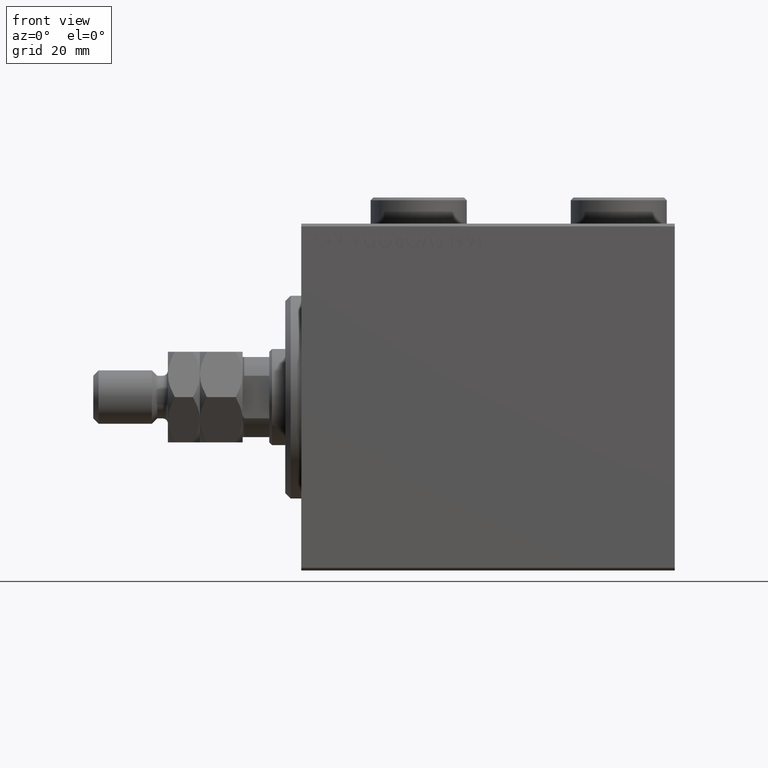
[diagram: clean part render]
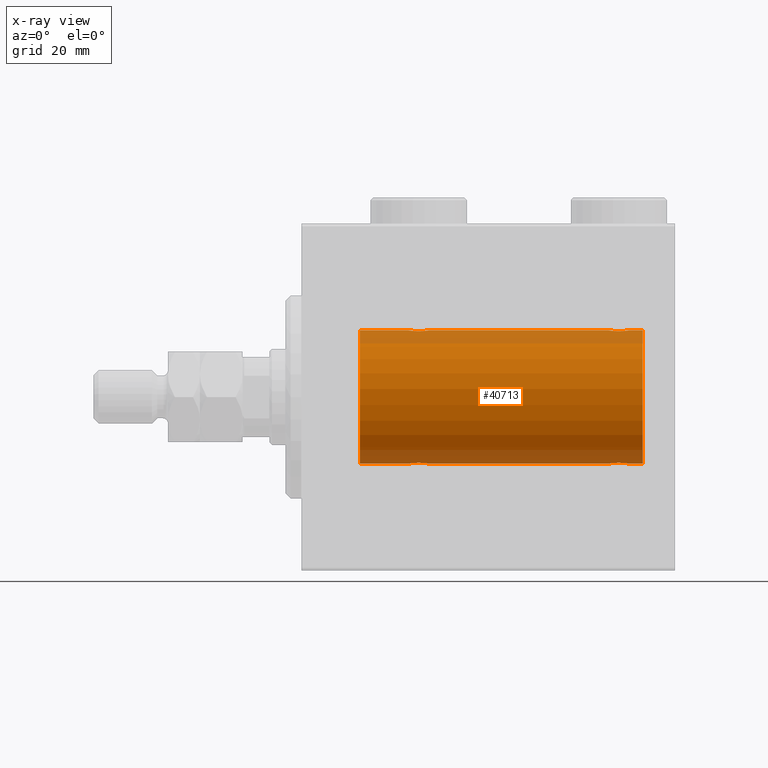
[diagram: x-ray — body ghosted, one internal face saturated and labeled with its STEP entity id]
A machine part, front view, then the same camera in x-ray: the body is ghosted and one INTERNAL B-rep face — a face not visible from any outside direction — is saturated and labeled: STEP entity #40713.
In plain terms, the highlighted cylindrical surface (partial cylindrical patch) has radius 12.5 mm, axis along (-1, -0, -0).
Its self-contained STEP definition (entity closure, byte-faithful):
#77 = CARTESIAN_POINT ( 'NONE',  ( 64.00000000000000000, 0.000000000000000000, 12.50000000000000000 ) ) ;
#99 = EDGE_CURVE ( 'NONE', #18798, #30659, #8438, .T. ) ;
#126 = CARTESIAN_POINT ( 'NONE',  ( 22.51693726697628151, -1.936441098420708773, 12.34912369794528608 ) ) ;
#435 = EDGE_CURVE ( 'NONE', #7023, #18798, #46847, .T. ) ;
#594 = CARTESIAN_POINT ( 'NONE',  ( 20.26436921980423023, -1.002396200863561404, 12.46022444231050841 ) ) ;
#702 = CARTESIAN_POINT ( 'NONE',  ( 64.00000000000000000, 1.530808498934191521E-15, -12.50000000000000000 ) ) ;
#1249 = EDGE_CURVE ( 'NONE', #4387, #30659, #10183, .T. ) ;
#1471 = ORIENTED_EDGE ( 'NONE', *, *, #8258, .T. ) ;
#1595 = DIRECTION ( 'NONE',  ( 0.000000000000000000, 0.000000000000000000, 1.000000000000000000 ) ) ;
#1694 = CARTESIAN_POINT ( 'NONE',  ( 59.36659749548705634, -1.999916920503820750, 12.33897614545467469 ) ) ;
#1918 = DIRECTION ( 'NONE',  ( -1.000000000000000000, -0.000000000000000000, -0.000000000000000000 ) ) ;
#2161 = CARTESIAN_POINT ( 'NONE',  ( 58.27972850102579372, -1.589951752150273068, 12.39868561261688917 ) ) ;
#2279 = CARTESIAN_POINT ( 'NONE',  ( 60.82299943107732787, -1.505544071529934858, -12.40934942683853492 ) ) ;
#2503 = CARTESIAN_POINT ( 'NONE',  ( 58.17883287148557514, -1.507135374967702557, -12.40915432986587241 ) ) ;
#3165 = VERTEX_POINT ( 'NONE', #8425 ) ;
#3197 = CARTESIAN_POINT ( 'NONE',  ( 61.08981090228289901, -1.220538259806349446, -12.44075068685996932 ) ) ;
#3242 = CARTESIAN_POINT ( 'NONE',  ( 22.88874725797039389, -1.796480516834687347, -12.37033750336835247 ) ) ;
#3462 = CARTESIAN_POINT ( 'NONE',  ( 20.77972850102578661, -1.589951752150277287, 12.39868561261688917 ) ) ;
#3881 = EDGE_CURVE ( 'NONE', #3165, #6021, #16280, .T. ) ;
#3944 = CARTESIAN_POINT ( 'NONE',  ( 23.58981090228289546, -1.220538259806347225, -12.44075068685997287 ) ) ;
#4134 = DIRECTION ( 'NONE',  ( -1.000000000000000000, -0.000000000000000000, -0.000000000000000000 ) ) ;
#4275 = DIRECTION ( 'NONE',  ( -1.000000000000000000, -0.000000000000000000, -0.000000000000000000 ) ) ;
#4387 = VERTEX_POINT ( 'NONE', #35763 ) ;
#4408 = CARTESIAN_POINT ( 'NONE',  ( 23.00099792098508189, -1.736403706023272431, 12.37902502246767966 ) ) ;
#4660 = CARTESIAN_POINT ( 'NONE',  ( 20.67883287148555382, -1.507135374967699670, -12.40915432986587064 ) ) ;
#5086 = CARTESIAN_POINT ( 'NONE',  ( 64.00000000000000000, 0.000000000000000000, 12.50000000000000000 ) ) ;
#5861 = VECTOR ( 'NONE', #21589, 1000.000000000000000 ) ;
#5868 = CARTESIAN_POINT ( 'NONE',  ( 59.23906502714393696, -1.987194304939080336, -12.34105826212745960 ) ) ;
#5988 = CARTESIAN_POINT ( 'NONE',  ( 60.01693726697627085, -1.936441098420706775, 12.34912369794528608 ) ) ;
#6021 = VERTEX_POINT ( 'NONE', #32816 ) ;
#6222 = CARTESIAN_POINT ( 'NONE',  ( 57.50000000000000000, -7.266434456262306043E-23, 12.50000000000000000 ) ) ;
#6328 = CARTESIAN_POINT ( 'NONE',  ( 61.50000000000000711, 1.530808426270318106E-15, -12.50000000000000000 ) ) ;
#6561 = CARTESIAN_POINT ( 'NONE',  ( 60.38874725797041521, -1.796480516834690455, -12.37033750336835780 ) ) ;
#7023 = VERTEX_POINT ( 'NONE', #30250 ) ;
#7065 = CARTESIAN_POINT ( 'NONE',  ( 19.99999999999999645, -7.265724481447607133E-23, 12.50000000000000000 ) ) ;
#7073 = CARTESIAN_POINT ( 'NONE',  ( 23.94744340572329833, -0.5247436444070328054, -12.49130933415156619 ) ) ;
#7277 = EDGE_CURVE ( 'NONE', #4387, #37703, #40839, .T. ) ;
#8005 = CARTESIAN_POINT ( 'NONE',  ( 21.86659749548704212, -1.999916920503820306, 12.33897614545467647 ) ) ;
#8011 = CARTESIAN_POINT ( 'NONE',  ( 20.25337863379106551, -1.008535157355840761, -12.46157701909767646 ) ) ;
#8258 = EDGE_CURVE ( 'NONE', #7023, #26371, #23891, .T. ) ;
#8425 = CARTESIAN_POINT ( 'NONE',  ( 24.00000000000000000, 1.530808426277417854E-15, -12.50000000000000000 ) ) ;
#8438 = LINE ( 'NONE', #5086, #14132 ) ;
#8832 = DIRECTION ( 'NONE',  ( -1.000000000000000000, -0.000000000000000000, -0.000000000000000000 ) ) ;
#8856 = DIRECTION ( 'NONE',  ( 0.000000000000000000, 0.000000000000000000, 1.000000000000000000 ) ) ;
#8916 = EDGE_CURVE ( 'NONE', #26371, #18237, #27354, .T. ) ;
#9113 = CARTESIAN_POINT ( 'NONE',  ( 58.17700056892267924, -1.505544071529938632, 12.40934942683853670 ) ) ;
#9570 = CARTESIAN_POINT ( 'NONE',  ( 57.55255659427669457, -0.5247436444070353589, 12.49130933415156441 ) ) ;
#9679 = EDGE_CURVE ( 'NONE', #42228, #21039, #33014, .T. ) ;
#9806 = CARTESIAN_POINT ( 'NONE',  ( 59.23608626897564733, -1.986793270638198106, 12.34112317291865146 ) ) ;
#10146 = CARTESIAN_POINT ( 'NONE',  ( 61.44744340572331254, -0.5247436444070329165, -12.49130933415156797 ) ) ;
#10183 = B_SPLINE_CURVE_WITH_KNOTS ( 'NONE', 3,
 ( #6222, #38414, #9570, #34622, #13388, #12934, #37951, #9113, #2161, #41511, #45093, #19860, #34386, #9806, #1694, #41987, #16281, #5988, #27475, #34852, #30807, #16754, #31286, #45804, #27928, #13162, #27699, #35307 ),
 .UNSPECIFIED., .F., .F.,
 ( 4, 2, 2, 2, 2, 2, 2, 2, 2, 2, 2, 2, 2, 4 ),
 ( 0.006262980370572174098, 0.007045658964677370753, 0.007436998261729972984, 0.007828337558782575215, 0.008219676855835175711, 0.008611016152887777941, 0.009002355449940380172, 0.009393694746992982403, 0.009785034044045584634, 0.01017637334109818686, 0.01056771263815078910, 0.01095905193520338959, 0.01174173052930859232, 0.01252440912341379678 ),
 .UNSPECIFIED. ) ;
#10345 = EDGE_LOOP ( 'NONE', ( #34590, #1471, #30394, #24728, #19996, #23966, #33427, #46573, #36401, #18529, #20792, #38269 ) ) ;
#10379 = CARTESIAN_POINT ( 'NONE',  ( 58.85574721202270609, -1.897913903092051324, -12.35518060345725289 ) ) ;
#10585 = EDGE_CURVE ( 'NONE', #42228, #37703, #16460, .T. ) ;
#11122 = CARTESIAN_POINT ( 'NONE',  ( 20.99654425923307954, -1.734959850168413587, 12.37922718965051061 ) ) ;
#11129 = CARTESIAN_POINT ( 'NONE',  ( 23.73563078019576977, -1.002396200863559184, -12.46022444231050663 ) ) ;
#11829 = CARTESIAN_POINT ( 'NONE',  ( 21.86910032676576421, -2.000082296475566679, -12.33894933996983490 ) ) ;
#12071 = CARTESIAN_POINT ( 'NONE',  ( 22.26391373102435622, -1.986793270638196551, -12.34112317291864791 ) ) ;
#12444 = CARTESIAN_POINT ( 'NONE',  ( 64.00000000000000000, 0.000000000000000000, 0.000000000000000000 ) ) ;
#12529 = CARTESIAN_POINT ( 'NONE',  ( 64.00000000000000000, 0.000000000000000000, 12.50000000000000000 ) ) ;
#12934 = CARTESIAN_POINT ( 'NONE',  ( 57.91018909771712231, -1.220538259806350112, 12.44075068685996932 ) ) ;
#12983 = DIRECTION ( 'NONE',  ( -1.000000000000000000, -0.000000000000000000, -0.000000000000000000 ) ) ;
#13162 = CARTESIAN_POINT ( 'NONE',  ( 61.44665679898378130, -0.5275951738695680016, 12.49118442338578205 ) ) ;
#13272 = CARTESIAN_POINT ( 'NONE',  ( 57.55334320101621159, -0.5275951738695725535, -12.49118442338578561 ) ) ;
#13388 = CARTESIAN_POINT ( 'NONE',  ( 57.76436921980423733, -1.002396200863562736, 12.46022444231050663 ) ) ;
#14132 = VECTOR ( 'NONE', #12983, 1000.000000000000000 ) ;
#14243 = CARTESIAN_POINT ( 'NONE',  ( 22.64643896963591985, -1.897190184049187378, -12.35529285772521924 ) ) ;
#14331 = FACE_OUTER_BOUND ( 'NONE', #10345, .T. ) ;
#14475 = CARTESIAN_POINT ( 'NONE',  ( 23.59744774691023039, -1.231226695485369893, 12.44059298055988272 ) ) ;
#14704 = CARTESIAN_POINT ( 'NONE',  ( 24.00000000000000000, -4.527848004210791175E-16, 12.50000000000000000 ) ) ;
#14712 = CARTESIAN_POINT ( 'NONE',  ( 24.00000000000000000, 1.530808426277417854E-15, -12.50000000000000000 ) ) ;
#14929 = CARTESIAN_POINT ( 'NONE',  ( 20.20214393531741237, -0.8858253204748024467, 12.46915613403961309 ) ) ;
#15413 = CARTESIAN_POINT ( 'NONE',  ( 21.48306273302371494, -1.936441098420706997, -12.34912369794528431 ) ) ;
#16280 = B_SPLINE_CURVE_WITH_KNOTS ( 'NONE', 3,
 ( #14712, #29252, #7073, #46875, #11129, #3944, #39256, #33053, #28551, #35935, #3242, #14243, #43307, #12071, #40897, #11829, #40660, #15413, #34248, #33768, #26865, #34000, #4660, #29953, #8011, #22338, #44956, #44703 ),
 .UNSPECIFIED., .F., .F.,
 ( 4, 2, 2, 2, 2, 2, 2, 2, 2, 2, 2, 2, 2, 4 ),
 ( 0.006262980370572176700, 0.007045658964677373355, 0.007436998261729973851, 0.007828337558782575215, 0.008219676855835175711, 0.008611016152887776207, 0.009002355449940376703, 0.009393694746992977199, 0.009785034044045577695, 0.01017637334109817646, 0.01056771263815077869, 0.01095905193520337745, 0.01174173052930858711, 0.01252440912341379504 ),
 .UNSPECIFIED. ) ;
#16281 = CARTESIAN_POINT ( 'NONE',  ( 59.76093497285608436, -1.987194304939078116, 12.34105826212746138 ) ) ;
#16412 = CARTESIAN_POINT ( 'NONE',  ( 10.99999999999999645, 0.000000000000000000, 0.000000000000000000 ) ) ;
#16460 = B_SPLINE_CURVE_WITH_KNOTS ( 'NONE', 3,
 ( #7065, #33279, #25433, #14929, #594, #36846, #39947, #40653, #3462, #11122, #22097, #25667, #32580, #18054, #8005, #22562, #40414, #126, #37083, #33046, #4408, #36616, #29479, #14475, #43991, #18994, #33526, #14704 ),
 .UNSPECIFIED., .F., .F.,
 ( 4, 2, 2, 2, 2, 2, 2, 2, 2, 2, 2, 2, 2, 4 ),
 ( 0.006262980370572172363, 0.007045658964677369886, 0.007436998261729971249, 0.007828337558782571745, 0.008219676855835172241, 0.008611016152887774472, 0.009002355449940373233, 0.009393694746992975464, 0.009785034044045575960, 0.01017637334109817646, 0.01056771263815077869, 0.01095905193520337918, 0.01174173052930858538, 0.01252440912341379504 ),
 .UNSPECIFIED. ) ;
#16536 = EDGE_CURVE ( 'NONE', #18237, #3165, #41716, .T. ) ;
#16596 = EDGE_CURVE ( 'NONE', #6021, #18158, #30537, .T. ) ;
#16754 = CARTESIAN_POINT ( 'NONE',  ( 60.71854119541938388, -1.591305132013881796, 12.39851226212235957 ) ) ;
#16864 = CARTESIAN_POINT ( 'NONE',  ( 60.14643896963591629, -1.897190184049190043, -12.35529285772521391 ) ) ;
#17086 = CARTESIAN_POINT ( 'NONE',  ( 61.00722151467995502, -1.321088093821077614, -12.43033959299025248 ) ) ;
#18054 = CARTESIAN_POINT ( 'NONE',  ( 21.73608626897565799, -1.986793270638199438, 12.34112317291865502 ) ) ;
#18158 = VERTEX_POINT ( 'NONE', #35814 ) ;
#18237 = VERTEX_POINT ( 'NONE', #24396 ) ;
#18529 = ORIENTED_EDGE ( 'NONE', *, *, #7277, .F. ) ;
#18798 = VERTEX_POINT ( 'NONE', #12529 ) ;
#18994 = CARTESIAN_POINT ( 'NONE',  ( 23.94665679898380617, -0.5275951738695671134, 12.49118442338578561 ) ) ;
#19860 = CARTESIAN_POINT ( 'NONE',  ( 58.85356103036409081, -1.897190184049188932, 12.35529285772521924 ) ) ;
#19996 = ORIENTED_EDGE ( 'NONE', *, *, #3881, .T. ) ;
#20792 = ORIENTED_EDGE ( 'NONE', *, *, #1249, .T. ) ;
#21039 = VERTEX_POINT ( 'NONE', #33431 ) ;
#21129 = CARTESIAN_POINT ( 'NONE',  ( 61.23563078019578398, -1.002396200863560738, -12.46022444231050841 ) ) ;
#21337 = VECTOR ( 'NONE', #4275, 1000.000000000000000 ) ;
#21589 = DIRECTION ( 'NONE',  ( -1.000000000000000000, -0.000000000000000000, -0.000000000000000000 ) ) ;
#22097 = CARTESIAN_POINT ( 'NONE',  ( 21.11125274202960256, -1.796480516834690233, 12.37033750336835958 ) ) ;
#22338 = CARTESIAN_POINT ( 'NONE',  ( 20.05334320101619738, -0.5275951738695662252, -12.49118442338578561 ) ) ;
#22562 = CARTESIAN_POINT ( 'NONE',  ( 22.13089967323422869, -2.000082296475568011, 12.33894933996983134 ) ) ;
#23569 = DIRECTION ( 'NONE',  ( -1.000000000000000000, 0.000000000000000000, 0.000000000000000000 ) ) ;
#23891 = LINE ( 'NONE', #27466, #38628 ) ;
#23966 = ORIENTED_EDGE ( 'NONE', *, *, #16596, .T. ) ;
#24396 = CARTESIAN_POINT ( 'NONE',  ( 57.50000000000000000, -7.533308568696040923E-15, -12.50000000000000000 ) ) ;
#24695 = CARTESIAN_POINT ( 'NONE',  ( 60.72027149897421339, -1.589951752150274844, -12.39868561261689273 ) ) ;
#24728 = ORIENTED_EDGE ( 'NONE', *, *, #16536, .T. ) ;
#24929 = CARTESIAN_POINT ( 'NONE',  ( 58.61383846120568109, -1.797736511708066143, -12.37015393445320655 ) ) ;
#25070 = CARTESIAN_POINT ( 'NONE',  ( 61.50000000000000711, -7.215738317004035941E-16, 12.50000000000000000 ) ) ;
#25433 = CARTESIAN_POINT ( 'NONE',  ( 20.05255659427670167, -0.5247436444070346928, 12.49130933415156619 ) ) ;
#25667 = CARTESIAN_POINT ( 'NONE',  ( 21.35356103036408371, -1.897190184049189599, 12.35529285772521391 ) ) ;
#26318 = AXIS2_PLACEMENT_3D ( 'NONE', #12444, #41504, #8856 ) ;
#26371 = VERTEX_POINT ( 'NONE', #6328 ) ;
#26482 = VECTOR ( 'NONE', #4134, 1000.000000000000000 ) ;
#26865 = CARTESIAN_POINT ( 'NONE',  ( 20.99900207901491811, -1.736403706023270654, -12.37902502246767966 ) ) ;
#27354 = B_SPLINE_CURVE_WITH_KNOTS ( 'NONE', 3,
 ( #35418, #46371, #10146, #35195, #21129, #3197, #17086, #2279, #24695, #39214, #6561, #16864, #32088, #46605, #28506, #43023, #5868, #31395, #10379, #24929, #35893, #32315, #2503, #45913, #46830, #13272, #27810, #42325 ),
 .UNSPECIFIED., .F., .F.,
 ( 4, 2, 2, 2, 2, 2, 2, 2, 2, 2, 2, 2, 2, 4 ),
 ( 0.006262980370572173230, 0.007045658964677369018, 0.007436998261729971249, 0.007828337558782573480, 0.008219676855835175711, 0.008611016152887777941, 0.009002355449940380172, 0.009393694746992982403, 0.009785034044045584634, 0.01017637334109818686, 0.01056771263815078910, 0.01095905193520339133, 0.01174173052930859579, 0.01252440912341380025 ),
 .UNSPECIFIED. ) ;
#27466 = CARTESIAN_POINT ( 'NONE',  ( 64.00000000000000000, 1.530808498934191521E-15, -12.50000000000000000 ) ) ;
#27475 = CARTESIAN_POINT ( 'NONE',  ( 60.14425278797731522, -1.897913903092049548, 12.35518060345725289 ) ) ;
#27699 = CARTESIAN_POINT ( 'NONE',  ( 61.50000000000000000, -0.2646816682749791316, 12.50000000000000000 ) ) ;
#27810 = CARTESIAN_POINT ( 'NONE',  ( 57.50000000000000000, -0.2646816682749856819, -12.50000000000000711 ) ) ;
#27928 = CARTESIAN_POINT ( 'NONE',  ( 61.24662136620892028, -1.008535157355842760, 12.46157701909767468 ) ) ;
#28116 = CARTESIAN_POINT ( 'NONE',  ( 24.00000000000000000, -4.527848004210791175E-16, 12.50000000000000000 ) ) ;
#28338 = AXIS2_PLACEMENT_3D ( 'NONE', #16412, #23569, #1595 ) ;
#28506 = CARTESIAN_POINT ( 'NONE',  ( 59.63340250451296498, -1.999916920503821194, -12.33897614545467825 ) ) ;
#28551 = CARTESIAN_POINT ( 'NONE',  ( 23.22027149897420628, -1.589951752150275732, -12.39868561261689273 ) ) ;
#29113 = CIRCLE ( 'NONE', #28338, 12.50000000000000000 ) ;
#29252 = CARTESIAN_POINT ( 'NONE',  ( 24.00000000000000711, -0.2612140938986747818, -12.50000000000000533 ) ) ;
#29479 = CARTESIAN_POINT ( 'NONE',  ( 23.32116712851443907, -1.507135374967700558, 12.40915432986587064 ) ) ;
#29953 = CARTESIAN_POINT ( 'NONE',  ( 20.40255225308977671, -1.231226695485369893, -12.44059298055988627 ) ) ;
#30250 = CARTESIAN_POINT ( 'NONE',  ( 64.00000000000000000, 1.530808498934191521E-15, -12.50000000000000000 ) ) ;
#30394 = ORIENTED_EDGE ( 'NONE', *, *, #8916, .T. ) ;
#30537 = LINE ( 'NONE', #702, #32013 ) ;
#30659 = VERTEX_POINT ( 'NONE', #25070 ) ;
#30807 = CARTESIAN_POINT ( 'NONE',  ( 60.50099792098509255, -1.736403706023274651, 12.37902502246767966 ) ) ;
#31286 = CARTESIAN_POINT ( 'NONE',  ( 60.82116712851446749, -1.507135374967701003, 12.40915432986587419 ) ) ;
#31395 = CARTESIAN_POINT ( 'NONE',  ( 58.98306273302370784, -1.936441098420709883, -12.34912369794528786 ) ) ;
#32013 = VECTOR ( 'NONE', #8832, 1000.000000000000000 ) ;
#32088 = CARTESIAN_POINT ( 'NONE',  ( 60.01961472357874783, -1.935716533151644381, -12.34923763528284724 ) ) ;
#32210 = CARTESIAN_POINT ( 'NONE',  ( 64.00000000000000000, 0.000000000000000000, 0.000000000000000000 ) ) ;
#32315 = CARTESIAN_POINT ( 'NONE',  ( 58.28145880458064454, -1.591305132013884238, -12.39851226212236313 ) ) ;
#32580 = CARTESIAN_POINT ( 'NONE',  ( 21.48038527642126283, -1.935716533151644825, 12.34923763528284724 ) ) ;
#32816 = CARTESIAN_POINT ( 'NONE',  ( 19.99999999999999645, -3.213890523917628161E-15, -12.50000000000000000 ) ) ;
#33014 = LINE ( 'NONE', #40621, #26482 ) ;
#33046 = CARTESIAN_POINT ( 'NONE',  ( 22.88616153879432602, -1.797736511708064144, 12.37015393445320299 ) ) ;
#33053 = CARTESIAN_POINT ( 'NONE',  ( 23.32299943107732432, -1.505544071529935080, -12.40934942683853848 ) ) ;
#33279 = CARTESIAN_POINT ( 'NONE',  ( 19.99999999999999289, -0.2612140938986765581, 12.50000000000000000 ) ) ;
#33427 = ORIENTED_EDGE ( 'NONE', *, *, #41133, .T. ) ;
#33431 = CARTESIAN_POINT ( 'NONE',  ( 10.99999999999999645, 0.000000000000000000, 12.50000000000000000 ) ) ;
#33526 = CARTESIAN_POINT ( 'NONE',  ( 24.00000000000000000, -0.2646816682749787430, 12.50000000000000178 ) ) ;
#33768 = CARTESIAN_POINT ( 'NONE',  ( 21.11383846120566332, -1.797736511708062368, -12.37015393445320122 ) ) ;
#34000 = CARTESIAN_POINT ( 'NONE',  ( 20.78145880458060901, -1.591305132013878021, -12.39851226212236313 ) ) ;
#34248 = CARTESIAN_POINT ( 'NONE',  ( 21.35574721202270254, -1.897913903092047327, -12.35518060345725289 ) ) ;
#34386 = CARTESIAN_POINT ( 'NONE',  ( 58.98038527642127349, -1.935716533151643493, 12.34923763528284901 ) ) ;
#34590 = ORIENTED_EDGE ( 'NONE', *, *, #435, .F. ) ;
#34622 = CARTESIAN_POINT ( 'NONE',  ( 57.70214393531741592, -0.8858253204748025578, 12.46915613403960954 ) ) ;
#34852 = CARTESIAN_POINT ( 'NONE',  ( 60.38616153879433313, -1.797736511708064144, 12.37015393445320655 ) ) ;
#35195 = CARTESIAN_POINT ( 'NONE',  ( 61.29785606468259118, -0.8858253204748017806, -12.46915613403961309 ) ) ;
#35307 = CARTESIAN_POINT ( 'NONE',  ( 61.50000000000000711, -7.215738317004035941E-16, 12.50000000000000000 ) ) ;
#35418 = CARTESIAN_POINT ( 'NONE',  ( 61.50000000000000711, 1.530808426270318106E-15, -12.50000000000000000 ) ) ;
#35549 = DIRECTION ( 'NONE',  ( -1.000000000000000000, -0.000000000000000000, -0.000000000000000000 ) ) ;
#35763 = CARTESIAN_POINT ( 'NONE',  ( 57.50000000000000000, -7.266434456262306043E-23, 12.50000000000000000 ) ) ;
#35814 = CARTESIAN_POINT ( 'NONE',  ( 10.99999999999999645, 1.530808498934191521E-15, -12.50000000000000000 ) ) ;
#35893 = CARTESIAN_POINT ( 'NONE',  ( 58.49900207901491456, -1.736403706023276650, -12.37902502246767789 ) ) ;
#35935 = CARTESIAN_POINT ( 'NONE',  ( 23.00345574076691335, -1.734959850168410256, -12.37922718965050528 ) ) ;
#36401 = ORIENTED_EDGE ( 'NONE', *, *, #10585, .T. ) ;
#36616 = CARTESIAN_POINT ( 'NONE',  ( 23.21854119541938033, -1.591305132013879131, 12.39851226212235957 ) ) ;
#36846 = CARTESIAN_POINT ( 'NONE',  ( 20.41018909771710454, -1.220538259806349446, 12.44075068685996932 ) ) ;
#37083 = CARTESIAN_POINT ( 'NONE',  ( 22.64425278797729391, -1.897913903092048438, 12.35518060345725111 ) ) ;
#37703 = VERTEX_POINT ( 'NONE', #28116 ) ;
#37951 = CARTESIAN_POINT ( 'NONE',  ( 57.99277848532008051, -1.321088093821082721, 12.43033959299025426 ) ) ;
#38269 = ORIENTED_EDGE ( 'NONE', *, *, #99, .F. ) ;
#38414 = CARTESIAN_POINT ( 'NONE',  ( 57.50000000000001421, -0.2612140938986763361, 12.50000000000000355 ) ) ;
#38628 = VECTOR ( 'NONE', #1918, 1000.000000000000000 ) ;
#39214 = CARTESIAN_POINT ( 'NONE',  ( 60.50345574076694533, -1.734959850168411366, -12.37922718965050883 ) ) ;
#39256 = CARTESIAN_POINT ( 'NONE',  ( 23.50722151467992660, -1.321088093821078502, -12.43033959299025248 ) ) ;
#39812 = DIRECTION ( 'NONE',  ( 0.000000000000000000, 0.000000000000000000, 1.000000000000000000 ) ) ;
#39947 = CARTESIAN_POINT ( 'NONE',  ( 20.49277848532005919, -1.321088093821079834, 12.43033959299025071 ) ) ;
#40413 = CARTESIAN_POINT ( 'NONE',  ( 19.99999999999999645, -7.265724481447607133E-23, 12.50000000000000000 ) ) ;
#40414 = CARTESIAN_POINT ( 'NONE',  ( 22.26093497285607370, -1.987194304939079448, 12.34105826212746138 ) ) ;
#40621 = CARTESIAN_POINT ( 'NONE',  ( 64.00000000000000000, 0.000000000000000000, 12.50000000000000000 ) ) ;
#40653 = CARTESIAN_POINT ( 'NONE',  ( 20.67700056892266502, -1.505544071529935968, 12.40934942683853670 ) ) ;
#40660 = CARTESIAN_POINT ( 'NONE',  ( 21.73906502714393341, -1.987194304939077671, -12.34105826212746138 ) ) ;
#40713 = ADVANCED_FACE ( 'NONE', ( #14331 ), #42917, .F. ) ;
#40839 = LINE ( 'NONE', #77, #5861 ) ;
#40897 = CARTESIAN_POINT ( 'NONE',  ( 22.13340250451295077, -1.999916920503817197, -12.33897614545467469 ) ) ;
#41133 = EDGE_CURVE ( 'NONE', #18158, #21039, #29113, .T. ) ;
#41239 = CARTESIAN_POINT ( 'NONE',  ( 64.00000000000000000, 1.530808498934191521E-15, -12.50000000000000000 ) ) ;
#41504 = DIRECTION ( 'NONE',  ( -1.000000000000000000, 0.000000000000000000, 0.000000000000000000 ) ) ;
#41511 = CARTESIAN_POINT ( 'NONE',  ( 58.49654425923307599, -1.734959850168409812, 12.37922718965050706 ) ) ;
#41716 = LINE ( 'NONE', #41239, #21337 ) ;
#41987 = CARTESIAN_POINT ( 'NONE',  ( 59.63089967323423934, -2.000082296475567567, 12.33894933996983134 ) ) ;
#42228 = VERTEX_POINT ( 'NONE', #40413 ) ;
#42325 = CARTESIAN_POINT ( 'NONE',  ( 57.50000000000000000, -7.533308568696040923E-15, -12.50000000000000000 ) ) ;
#42917 = CYLINDRICAL_SURFACE ( 'NONE', #43552, 12.50000000000000000 ) ;
#43023 = CARTESIAN_POINT ( 'NONE',  ( 59.36910032676577487, -2.000082296475570232, -12.33894933996983312 ) ) ;
#43307 = CARTESIAN_POINT ( 'NONE',  ( 22.51961472357873717, -1.935716533151642826, -12.34923763528285257 ) ) ;
#43552 = AXIS2_PLACEMENT_3D ( 'NONE', #32210, #35549, #39812 ) ;
#43991 = CARTESIAN_POINT ( 'NONE',  ( 23.74662136620892383, -1.008535157355842538, 12.46157701909767646 ) ) ;
#44703 = CARTESIAN_POINT ( 'NONE',  ( 19.99999999999999645, -3.213890523917628161E-15, -12.50000000000000000 ) ) ;
#44956 = CARTESIAN_POINT ( 'NONE',  ( 20.00000000000000000, -0.2646816682749822958, -12.50000000000000000 ) ) ;
#45093 = CARTESIAN_POINT ( 'NONE',  ( 58.61125274202960611, -1.796480516834688679, 12.37033750336835425 ) ) ;
#45804 = CARTESIAN_POINT ( 'NONE',  ( 61.09744774691021263, -1.231226695485369671, 12.44059298055987917 ) ) ;
#45913 = CARTESIAN_POINT ( 'NONE',  ( 57.90255225308975895, -1.231226695485371669, -12.44059298055988094 ) ) ;
#46371 = CARTESIAN_POINT ( 'NONE',  ( 61.50000000000000711, -0.2612140938986743932, -12.50000000000000000 ) ) ;
#46573 = ORIENTED_EDGE ( 'NONE', *, *, #9679, .F. ) ;
#46605 = CARTESIAN_POINT ( 'NONE',  ( 59.76391373102438109, -1.986793270638201214, -12.34112317291865324 ) ) ;
#46830 = CARTESIAN_POINT ( 'NONE',  ( 57.75337863379106551, -1.008535157355846090, -12.46157701909767290 ) ) ;
#46847 = CIRCLE ( 'NONE', #26318, 12.50000000000000000 ) ;
#46875 = CARTESIAN_POINT ( 'NONE',  ( 23.79785606468258052, -0.8858253204748003373, -12.46915613403960954 ) ) ;